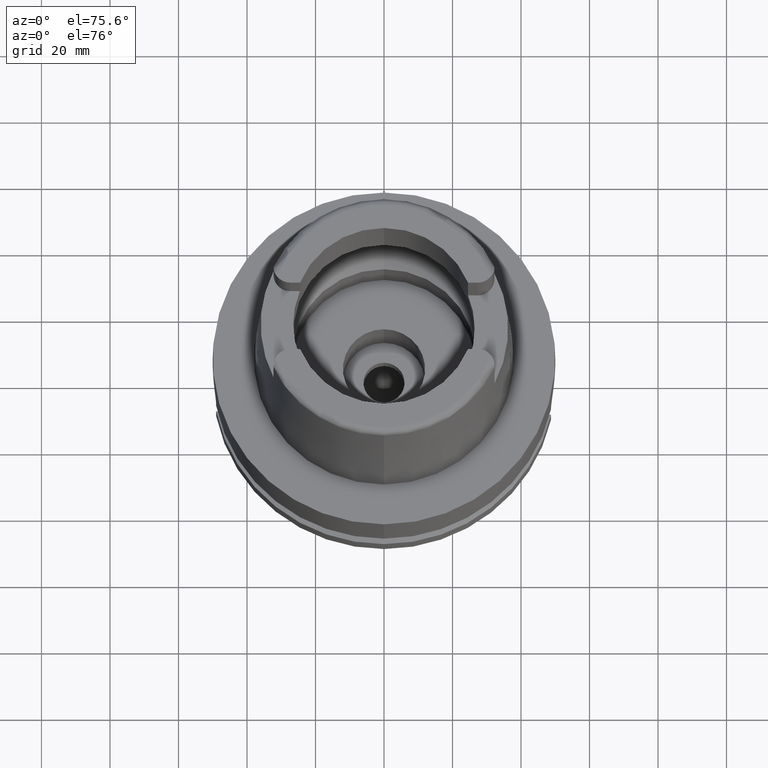
[diagram: clean part render]
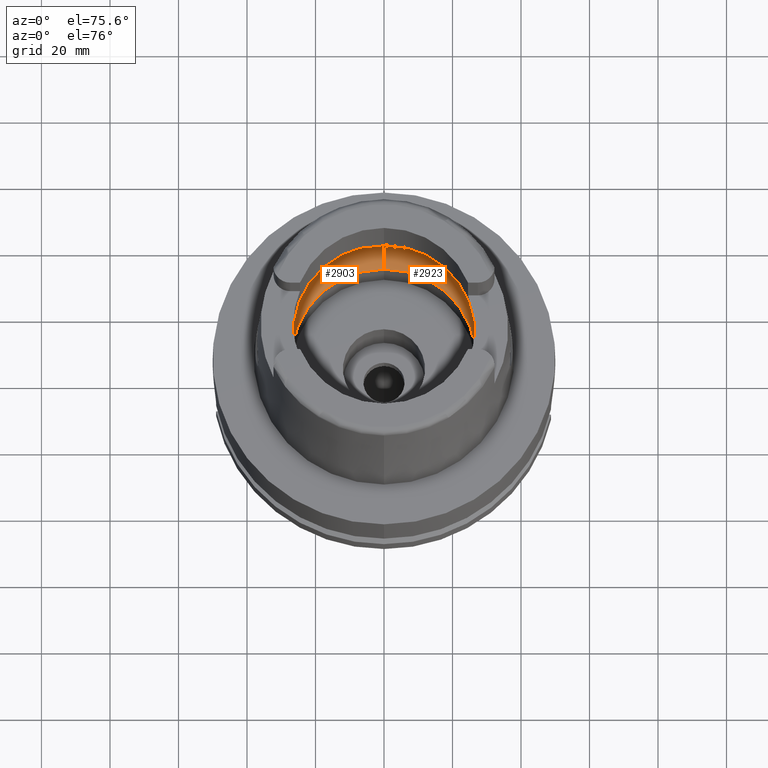
[diagram: same view with one multi-face feature highlighted, each face labeled with its STEP entity id]
A machine part, auxiliary view. The highlighted faces form ONE feature: a constant-radius fillet chain: 2 tangent blend faces with common blend radius 12 mm. The faces share edges in the B-rep.
Their STEP definitions:
[1] entity #2903 (Torus):
#584=CARTESIAN_POINT('',(-3.140918884336E1,-2.390158196044E0,9.496624327026E0));
#628=CARTESIAN_POINT('',(-3.140918884336E1,-2.390158196044E0,9.496624327026E0));
#629=CARTESIAN_POINT('',(-3.142817048744E1,-2.140719458354E0,9.388291173208E0));
#630=CARTESIAN_POINT('',(-3.145842599790E1,-1.626280530192E0,9.205228353213E0));
#631=CARTESIAN_POINT('',(-3.148416873543E1,-8.215750979197E-1,
9.037592781645E0));
#632=CARTESIAN_POINT('',(-3.148971910754E1,-2.740574929314E-1,9.E0));
#633=CARTESIAN_POINT('',(-3.148971910754E1,0.E0,9.E0));
#638=CARTESIAN_POINT('',(-3.148971910754E1,0.E0,9.E0));
#639=CARTESIAN_POINT('',(-3.148971910754E1,2.740569386345E-1,9.E0));
#640=CARTESIAN_POINT('',(-3.148416882895E1,8.215740320397E-1,9.037592208076E0));
#641=CARTESIAN_POINT('',(-3.145842553504E1,1.626291759550E0,9.205231279179E0));
#642=CARTESIAN_POINT('',(-3.142817013754E1,2.140724056368E0,9.388293170160E0));
#643=CARTESIAN_POINT('',(-3.140918884336E1,2.390158196044E0,9.496624327026E0));
#648=CARTESIAN_POINT('',(0.E0,0.E0,9.496624327026E0));
#649=DIRECTION('',(0.E0,0.E0,-1.E0));
#650=DIRECTION('',(-9.971171061384E-1,7.587803796965E-2,0.E0));
#651=AXIS2_PLACEMENT_3D('',#648,#649,#650);
#656=CARTESIAN_POINT('',(0.E0,0.E0,4.993178413032E-2));
#657=DIRECTION('',(0.E0,0.E0,1.E0));
#658=DIRECTION('',(0.E0,1.E0,0.E0));
#659=AXIS2_PLACEMENT_3D('',#656,#657,#658);
#664=CARTESIAN_POINT('',(0.E0,-1.95E1,9.496624327026E0));
#665=DIRECTION('',(-1.E0,0.E0,0.E0));
#666=DIRECTION('',(0.E0,-6.166666666667E-1,-7.872243785746E-1));
#667=AXIS2_PLACEMENT_3D('',#664,#665,#666);
#672=CARTESIAN_POINT('',(0.E0,0.E0,9.496624327026E0));
#673=DIRECTION('',(0.E0,0.E0,-1.E0));
#674=DIRECTION('',(0.E0,-1.E0,0.E0));
#675=AXIS2_PLACEMENT_3D('',#672,#673,#674);
#706=CARTESIAN_POINT('',(0.E0,1.95E1,9.496624327026E0));
#707=DIRECTION('',(1.E0,0.E0,0.E0));
#708=DIRECTION('',(0.E0,6.166666666667E-1,-7.872243785746E-1));
#709=AXIS2_PLACEMENT_3D('',#706,#707,#708);
#2269=VERTEX_POINT('',#584);
#2270=CARTESIAN_POINT('',(0.E0,-3.15E1,9.496624327026E0));
#2271=VERTEX_POINT('',#2270);
#2272=CARTESIAN_POINT('',(0.E0,3.15E1,9.496624327026E0));
#2273=VERTEX_POINT('',#2272);
#2274=CARTESIAN_POINT('',(-3.140918884336E1,2.390158196044E0,9.496624327026E0));
#2275=VERTEX_POINT('',#2274);
#2276=CARTESIAN_POINT('',(-3.148971910754E1,0.E0,9.E0));
#2277=VERTEX_POINT('',#2276);
#2282=CARTESIAN_POINT('',(0.E0,2.69E1,4.993178413033E-2));
#2283=VERTEX_POINT('',#2282);
#2284=CARTESIAN_POINT('',(0.E0,-2.69E1,4.993178413032E-2));
#2285=VERTEX_POINT('',#2284);
#2886=CARTESIAN_POINT('',(0.E0,0.E0,9.496624327026E0));
#2887=DIRECTION('',(0.E0,0.E0,1.E0));
#2888=DIRECTION('',(0.E0,1.E0,0.E0));
#2889=AXIS2_PLACEMENT_3D('',#2886,#2887,#2888);
#2890=TOROIDAL_SURFACE('',#2889,1.95E1,1.2E1);
#2891=ORIENTED_EDGE('',*,*,#2867,.T.);
#2892=ORIENTED_EDGE('',*,*,#2878,.T.);
#2893=ORIENTED_EDGE('',*,*,#2849,.T.);
#2895=ORIENTED_EDGE('',*,*,#2894,.F.);
#2897=ORIENTED_EDGE('',*,*,#2896,.T.);
#2899=ORIENTED_EDGE('',*,*,#2898,.T.);
#2900=ORIENTED_EDGE('',*,*,#2842,.T.);
#2901=EDGE_LOOP('',(#2891,#2892,#2893,#2895,#2897,#2899,#2900));
#2902=FACE_OUTER_BOUND('',#2901,.F.);
#634=B_SPLINE_CURVE_WITH_KNOTS('',3,(#628,#629,#630,#631,#632,#633),
.UNSPECIFIED.,.F.,.F.,(4,1,1,4),(0.E0,3.333333333333E-1,6.666666666667E-1,1.E0),
.UNSPECIFIED.);
#644=B_SPLINE_CURVE_WITH_KNOTS('',3,(#638,#639,#640,#641,#642,#643),
.UNSPECIFIED.,.F.,.F.,(4,1,1,4),(0.E0,3.333333333333E-1,6.666666666667E-1,1.E0),
.UNSPECIFIED.);
#652=CIRCLE('',#651,3.15E1);
#660=CIRCLE('',#659,2.69E1);
#668=CIRCLE('',#667,1.2E1);
#676=CIRCLE('',#675,3.15E1);
#710=CIRCLE('',#709,1.2E1);
#2842=EDGE_CURVE('',#2271,#2269,#676,.T.);
#2849=EDGE_CURVE('',#2275,#2273,#652,.T.);
#2867=EDGE_CURVE('',#2269,#2277,#634,.T.);
#2878=EDGE_CURVE('',#2277,#2275,#644,.T.);
#2894=EDGE_CURVE('',#2283,#2273,#710,.T.);
#2896=EDGE_CURVE('',#2283,#2285,#660,.T.);
#2898=EDGE_CURVE('',#2285,#2271,#668,.T.);
#2903=ADVANCED_FACE('',(#2902),#2890,.F.);
[2] entity #2923 (Torus):
#664=CARTESIAN_POINT('',(0.E0,-1.95E1,9.496624327026E0));
#665=DIRECTION('',(-1.E0,0.E0,0.E0));
#666=DIRECTION('',(0.E0,-6.166666666667E-1,-7.872243785746E-1));
#667=AXIS2_PLACEMENT_3D('',#664,#665,#666);
#680=CARTESIAN_POINT('',(3.148971910754E1,0.E0,9.E0));
#681=CARTESIAN_POINT('',(3.148971910754E1,-2.740581905778E-1,9.E0));
#682=CARTESIAN_POINT('',(3.148416870589E1,-8.215767162346E-1,9.037592982540E0));
#683=CARTESIAN_POINT('',(3.145842593441E1,-1.626281815418E0,9.205228751563E0));
#684=CARTESIAN_POINT('',(3.142817044753E1,-2.140719982791E0,9.388291400974E0));
#685=CARTESIAN_POINT('',(3.140918884336E1,-2.390158196044E0,9.496624327026E0));
#690=CARTESIAN_POINT('',(0.E0,0.E0,9.496624327026E0));
#691=DIRECTION('',(0.E0,0.E0,-1.E0));
#692=DIRECTION('',(9.971171061384E-1,-7.587803796965E-2,0.E0));
#693=AXIS2_PLACEMENT_3D('',#690,#691,#692);
#698=CARTESIAN_POINT('',(0.E0,0.E0,4.993178413033E-2));
#699=DIRECTION('',(0.E0,0.E0,1.E0));
#700=DIRECTION('',(0.E0,-1.E0,0.E0));
#701=AXIS2_PLACEMENT_3D('',#698,#699,#700);
#706=CARTESIAN_POINT('',(0.E0,1.95E1,9.496624327026E0));
#707=DIRECTION('',(1.E0,0.E0,0.E0));
#708=DIRECTION('',(0.E0,6.166666666667E-1,-7.872243785746E-1));
#709=AXIS2_PLACEMENT_3D('',#706,#707,#708);
#714=CARTESIAN_POINT('',(0.E0,0.E0,9.496624327026E0));
#715=DIRECTION('',(0.E0,0.E0,-1.E0));
#716=DIRECTION('',(0.E0,1.E0,0.E0));
#717=AXIS2_PLACEMENT_3D('',#714,#715,#716);
#722=CARTESIAN_POINT('',(3.140918884336E1,2.390158196044E0,9.496624327026E0));
#723=CARTESIAN_POINT('',(3.142817017765E1,2.140723529313E0,9.388292941256E0));
#724=CARTESIAN_POINT('',(3.145842559873E1,1.626290467951E0,9.205230879486E0));
#725=CARTESIAN_POINT('',(3.148416885824E1,8.215724231085E-1,9.037592008852E0));
#726=CARTESIAN_POINT('',(3.148971910754E1,2.740562451420E-1,9.E0));
#727=CARTESIAN_POINT('',(3.148971910754E1,0.E0,9.E0));
#739=CARTESIAN_POINT('',(3.140918884336E1,-2.390158196044E0,9.496624327026E0));
#770=CARTESIAN_POINT('',(3.140918884336E1,2.390158196044E0,9.496624327026E0));
#2270=CARTESIAN_POINT('',(0.E0,-3.15E1,9.496624327026E0));
#2271=VERTEX_POINT('',#2270);
#2272=CARTESIAN_POINT('',(0.E0,3.15E1,9.496624327026E0));
#2273=VERTEX_POINT('',#2272);
#2278=VERTEX_POINT('',#739);
#2280=VERTEX_POINT('',#680);
#2281=VERTEX_POINT('',#770);
#2282=CARTESIAN_POINT('',(0.E0,2.69E1,4.993178413033E-2));
#2283=VERTEX_POINT('',#2282);
#2284=CARTESIAN_POINT('',(0.E0,-2.69E1,4.993178413032E-2));
#2285=VERTEX_POINT('',#2284);
#2904=CARTESIAN_POINT('',(0.E0,0.E0,9.496624327026E0));
#2905=DIRECTION('',(0.E0,0.E0,1.E0));
#2906=DIRECTION('',(0.E0,1.E0,0.E0));
#2907=AXIS2_PLACEMENT_3D('',#2904,#2905,#2906);
#2908=TOROIDAL_SURFACE('',#2907,1.95E1,1.2E1);
#2910=ORIENTED_EDGE('',*,*,#2909,.T.);
#2912=ORIENTED_EDGE('',*,*,#2911,.T.);
#2913=ORIENTED_EDGE('',*,*,#2898,.F.);
#2915=ORIENTED_EDGE('',*,*,#2914,.T.);
#2916=ORIENTED_EDGE('',*,*,#2894,.T.);
#2918=ORIENTED_EDGE('',*,*,#2917,.T.);
#2920=ORIENTED_EDGE('',*,*,#2919,.T.);
#2921=EDGE_LOOP('',(#2910,#2912,#2913,#2915,#2916,#2918,#2920));
#2922=FACE_OUTER_BOUND('',#2921,.F.);
#668=CIRCLE('',#667,1.2E1);
#686=B_SPLINE_CURVE_WITH_KNOTS('',3,(#680,#681,#682,#683,#684,#685),
.UNSPECIFIED.,.F.,.F.,(4,1,1,4),(0.E0,3.333333333333E-1,6.666666666667E-1,1.E0),
.UNSPECIFIED.);
#694=CIRCLE('',#693,3.15E1);
#702=CIRCLE('',#701,2.69E1);
#710=CIRCLE('',#709,1.2E1);
#718=CIRCLE('',#717,3.15E1);
#728=B_SPLINE_CURVE_WITH_KNOTS('',3,(#722,#723,#724,#725,#726,#727),
.UNSPECIFIED.,.F.,.F.,(4,1,1,4),(0.E0,3.333333333333E-1,6.666666666667E-1,1.E0),
.UNSPECIFIED.);
#2894=EDGE_CURVE('',#2283,#2273,#710,.T.);
#2898=EDGE_CURVE('',#2285,#2271,#668,.T.);
#2909=EDGE_CURVE('',#2280,#2278,#686,.T.);
#2911=EDGE_CURVE('',#2278,#2271,#694,.T.);
#2914=EDGE_CURVE('',#2285,#2283,#702,.T.);
#2917=EDGE_CURVE('',#2273,#2281,#718,.T.);
#2919=EDGE_CURVE('',#2281,#2280,#728,.T.);
#2923=ADVANCED_FACE('',(#2922),#2908,.F.);